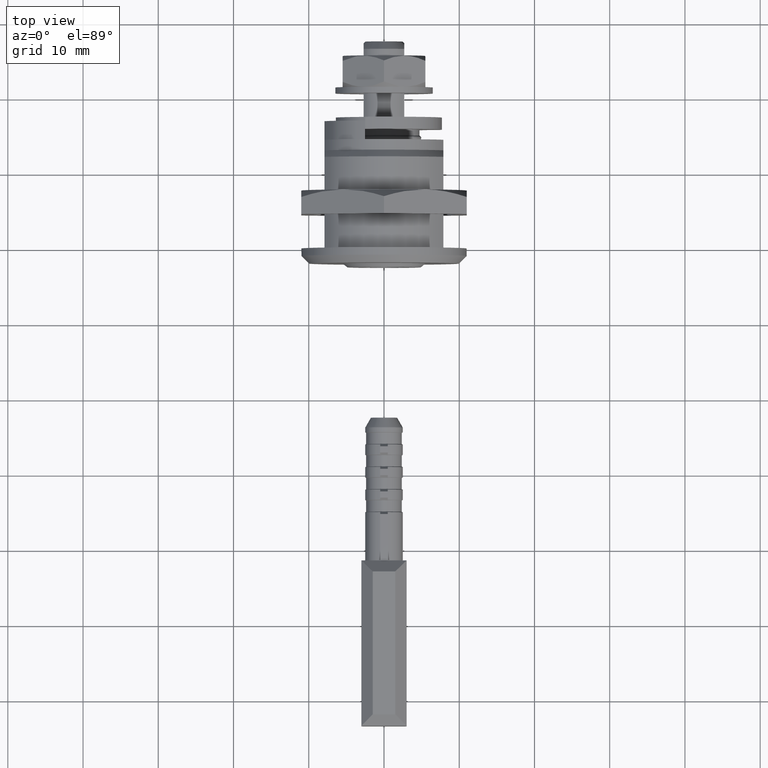
[diagram: clean part render]
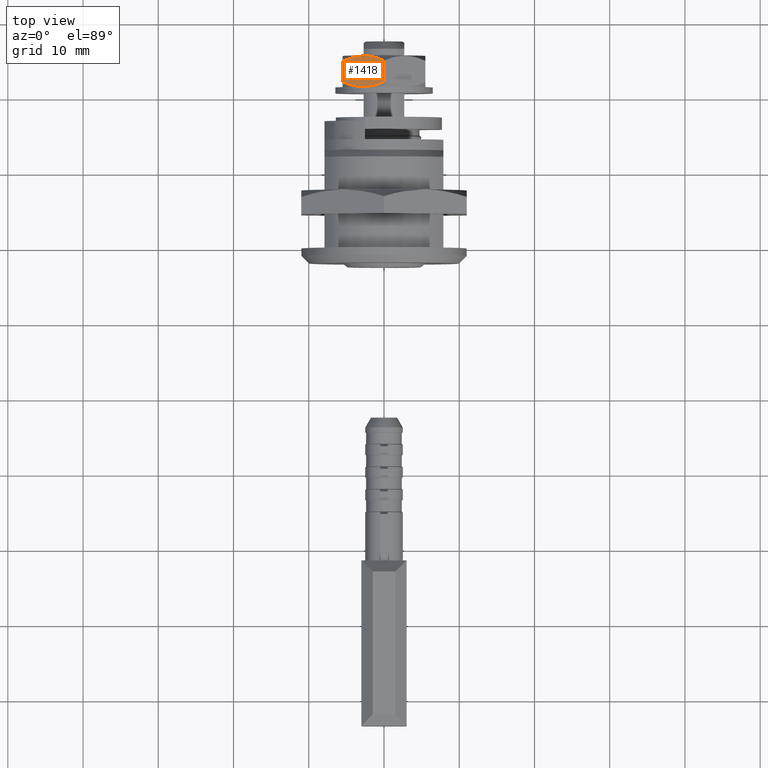
[diagram: same view with one face highlighted and labeled with its STEP entity id]
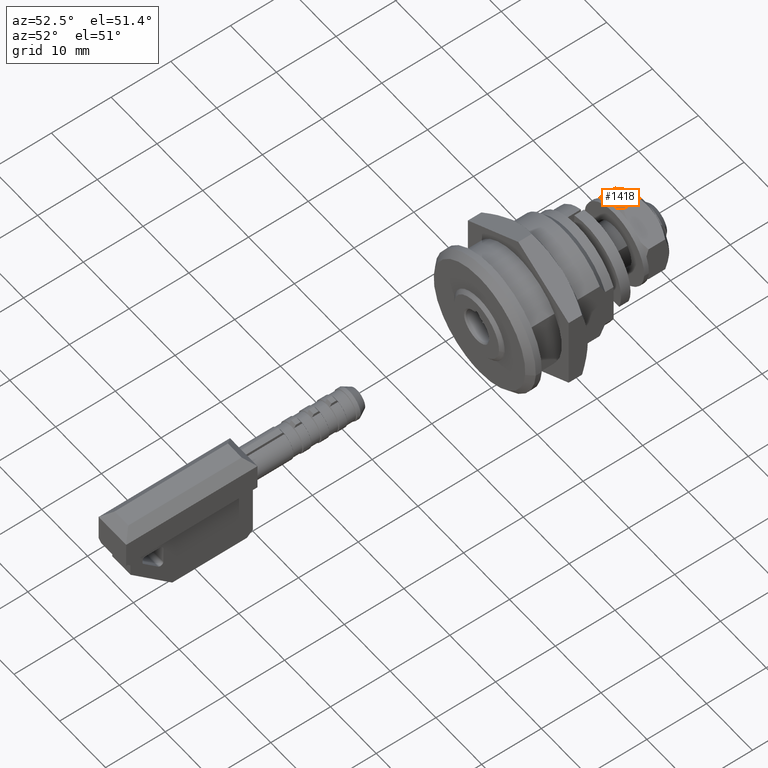
[diagram: same view with one face highlighted and labeled with its STEP entity id]
A machine part, top view. The second image highlights one B-rep face of the part: STEP entity #1418.
A second angle (auxiliary view) of the same face is appended — the face is thin or edge-on in the first view.
In plain terms, the highlighted face is a freeform B-spline surface patch.
Its self-contained STEP definition (entity closure, byte-faithful):
#901=CARTESIAN_POINT('',(24.903155606536199,5.499000000000001,3.175000000000000));
#902=VERTEX_POINT('',#901);
#930=CARTESIAN_POINT('',(24.902981309642801,-1.943614E-015,6.350000000000000));
#931=VERTEX_POINT('',#930);
#932=CARTESIAN_POINT('',(24.903155606536149,5.498999999999991,3.175000000000005));
#933=CARTESIAN_POINT('',(25.099669832096669,5.057041434739857,3.430177022131472));
#934=CARTESIAN_POINT('',(25.263831203070620,4.608719791433085,3.689027943662476));
#935=CARTESIAN_POINT('',(25.436266629124489,3.921721224087508,4.085685599840365));
#936=CARTESIAN_POINT('',(25.481368953459089,3.690287591392994,4.219310219553963));
#937=CARTESIAN_POINT('',(25.527221362953490,3.338849361372635,4.422222818265481));
#938=CARTESIAN_POINT('',(25.538874935336281,3.220989234482764,4.490272627844558));
#939=CARTESIAN_POINT('',(25.550561379620241,3.043059511661712,4.593005282864895));
#940=CARTESIAN_POINT('',(25.553489617492609,2.983513042194389,4.627386086749009));
#941=CARTESIAN_POINT('',(25.557352940436552,2.864879502344813,4.695882447727807));
#942=CARTESIAN_POINT('',(25.558296459186082,2.805692075807843,4.730055948228785));
#943=CARTESIAN_POINT('',(25.558127526477598,2.510394567209831,4.900554146046336));
#944=CARTESIAN_POINT('',(25.542290794699529,2.276211826469571,5.035766039454285));
#945=CARTESIAN_POINT('',(25.481720289358289,1.811628836321073,5.304005900105583));
#946=CARTESIAN_POINT('',(25.437014349084709,1.581224943661827,5.437035970880835));
#947=CARTESIAN_POINT('',(25.322464678738100,1.123707580689321,5.701196295928606));
#948=CARTESIAN_POINT('',(25.252645683170659,0.896590872741785,5.832328419538977));
#949=CARTESIAN_POINT('',(25.132168971512190,0.557977180966433,6.027836415790429));
#950=CARTESIAN_POINT('',(25.089343860060389,0.445355583506366,6.092861615269554));
#951=CARTESIAN_POINT('',(24.999345405261220,0.221692158711086,6.221999890178632));
#952=CARTESIAN_POINT('',(24.952139236931291,0.110543875983662,6.286174430578631));
#953=CARTESIAN_POINT('',(24.902981309642762,1.282795E-014,6.349999999999993));
#954=B_SPLINE_CURVE_WITH_KNOTS('',3,(#932,#933,#934,#935,#936,#937,#938,#939,#940,#941,#942,#943,#944,#945,#946,#947,#948,#949,#950,#951,#952,#953),.UNSPECIFIED.,.F.,.U.,(4,2,2,2,2,2,2,2,2,2,4),(0.0,0.250000000000001,0.375000000000002,0.437500000000002,0.468750000000002,0.500000000000002,0.625000000000001,0.750000000000001,0.875000000000001,0.937500000000000,1.0),.UNSPECIFIED.);
#955=EDGE_CURVE('',#902,#931,#954,.T.);
#1094=CARTESIAN_POINT('',(22.096618690357250,-1.943614E-015,6.350000000000000));
#1095=VERTEX_POINT('',#1094);
#1121=CARTESIAN_POINT('',(21.446328818663559,2.518554952968277,4.895845252479420));
#1122=VERTEX_POINT('',#1121);
#1123=CARTESIAN_POINT('',(21.446328818663559,2.518554952968277,4.895845252479420));
#1124=CARTESIAN_POINT('',(21.453195984051849,2.359442203404230,4.987713240958875));
#1125=CARTESIAN_POINT('',(21.467080124825621,2.201247943754206,5.079050913384919));
#1126=CARTESIAN_POINT('',(21.517877473982779,1.811629624259243,5.304007431975972));
#1127=CARTESIAN_POINT('',(21.562583692209390,1.581225633681710,5.437037312383341));
#1128=CARTESIAN_POINT('',(21.677133920296061,1.123708074226550,5.701197255439264));
#1129=CARTESIAN_POINT('',(21.746953195648722,0.896591267715281,5.832329187426907));
#1130=CARTESIAN_POINT('',(21.867430328133970,0.557977427689575,6.027836895457365));
#1131=CARTESIAN_POINT('',(21.910255580171398,0.445355780703493,6.092861998650482));
#1132=CARTESIAN_POINT('',(22.000254315284060,0.221692257158379,6.222000081575022));
#1133=CARTESIAN_POINT('',(22.047460623473022,0.110543925160921,6.286174526186660));
#1134=CARTESIAN_POINT('',(22.096618690357250,-1.943614E-015,6.350000000000000));
#1135=B_SPLINE_CURVE_WITH_KNOTS('',3,(#1123,#1124,#1125,#1126,#1127,#1128,#1129,#1130,#1131,#1132,#1133,#1134),.UNSPECIFIED.,.F.,.U.,(4,2,2,2,2,4),(0.540339850929763,0.625000000000000,0.750000000000000,0.875000000000000,0.937500000000000,1.0),.UNSPECIFIED.);
#1136=EDGE_CURVE('',#1122,#1095,#1135,.T.);
#1186=CARTESIAN_POINT('',(22.096444393463852,5.499000000000001,3.175000000000000));
#1187=VERTEX_POINT('',#1186);
#1188=CARTESIAN_POINT('',(22.096444393463852,5.499000000000001,3.175000000000000));
#1189=CARTESIAN_POINT('',(21.899929695655079,5.057041601105168,3.430177345570647));
#1190=CARTESIAN_POINT('',(21.735767851366589,4.608720124539318,3.689028591271106));
#1191=CARTESIAN_POINT('',(21.563331712908479,3.921721808162046,4.085686735369154));
#1192=CARTESIAN_POINT('',(21.518229150697898,3.690288259267327,4.219311518002161));
#1193=CARTESIAN_POINT('',(21.472376383671030,3.338850155199772,4.422224361584893));
#1194=CARTESIAN_POINT('',(21.460722691991101,3.220990070336320,4.490274252869655));
#1195=CARTESIAN_POINT('',(21.449036068570500,3.043060410622168,4.593007030579308));
#1196=CARTESIAN_POINT('',(21.446107770907879,2.983513962217967,4.627387875413295));
#1197=CARTESIAN_POINT('',(21.442244329165831,2.864880464219007,4.695884317755994));
#1198=CARTESIAN_POINT('',(21.441300751307100,2.805693058505237,4.730057858740405));
#1199=CARTESIAN_POINT('',(21.441378017303521,2.670395156406273,4.808175970652634));
#1200=CARTESIAN_POINT('',(21.443056835827960,2.594370785819250,4.852070814293316));
#1201=CARTESIAN_POINT('',(21.446328818663559,2.518554952968277,4.895845252479420));
#1202=B_SPLINE_CURVE_WITH_KNOTS('',3,(#1188,#1189,#1190,#1191,#1192,#1193,#1194,#1195,#1196,#1197,#1198,#1199,#1200,#1201),.UNSPECIFIED.,.F.,.U.,(4,2,2,2,2,2,4),(0.0,0.250000000000000,0.375000000000000,0.437500000000000,0.468750000000000,0.500000000000000,0.540339850929763),.UNSPECIFIED.);
#1203=EDGE_CURVE('',#1187,#1122,#1202,.T.);
#1392=CARTESIAN_POINT('',(22.096618690357250,-1.943614E-015,6.350000000000000));
#1393=CARTESIAN_POINT('',(24.902981309642801,-1.943614E-015,6.350000000000000));
#1394=QUASI_UNIFORM_CURVE('',1,(#1392,#1393),.UNSPECIFIED.,.F.,.U.);
#1395=EDGE_CURVE('',#1095,#931,#1394,.T.);
#1402=CARTESIAN_POINT('',(21.235767219818420,5.773675142583226,3.016408696544509));
#1403=CARTESIAN_POINT('',(21.235767219818420,-0.274675191748118,6.508591331842203));
#1404=CARTESIAN_POINT('',(25.763900764920539,5.773675142583226,3.016408696544509));
#1405=CARTESIAN_POINT('',(25.763900764920539,-0.274675191748118,6.508591331842203));
#1406=B_SPLINE_SURFACE_WITH_KNOTS('',1,1,((#1402,#1404),(#1403,#1405)),.UNSPECIFIED.,.F.,.F.,.U.,(2,2),(2,2),(0.0,6.984116359646424),(0.0,4.528133545102122),.UNSPECIFIED.);
#1407=ORIENTED_EDGE('',*,*,#955,.F.);
#1408=CARTESIAN_POINT('',(22.096444393463852,5.499000000000001,3.175000000000000));
#1409=CARTESIAN_POINT('',(24.903155606536199,5.499000000000001,3.175000000000000));
#1410=QUASI_UNIFORM_CURVE('',1,(#1408,#1409),.UNSPECIFIED.,.F.,.U.);
#1411=EDGE_CURVE('',#1187,#902,#1410,.T.);
#1412=ORIENTED_EDGE('',*,*,#1411,.F.);
#1413=ORIENTED_EDGE('',*,*,#1203,.T.);
#1414=ORIENTED_EDGE('',*,*,#1136,.T.);
#1415=ORIENTED_EDGE('',*,*,#1395,.T.);
#1416=EDGE_LOOP('',(#1407,#1412,#1413,#1414,#1415));
#1417=FACE_OUTER_BOUND('',#1416,.T.);
#1418=ADVANCED_FACE('',(#1417),#1406,.T.);